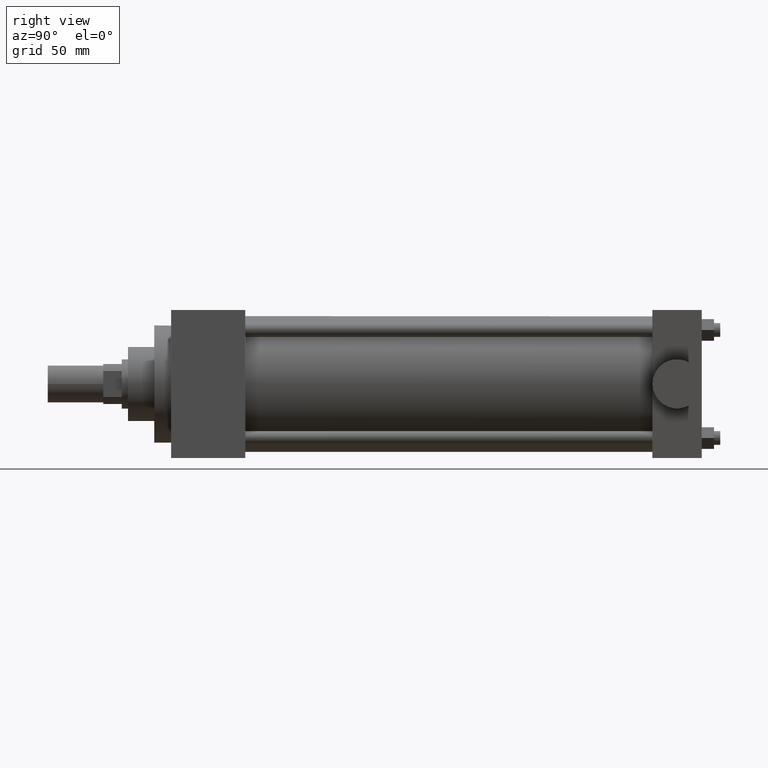
[diagram: clean part render]
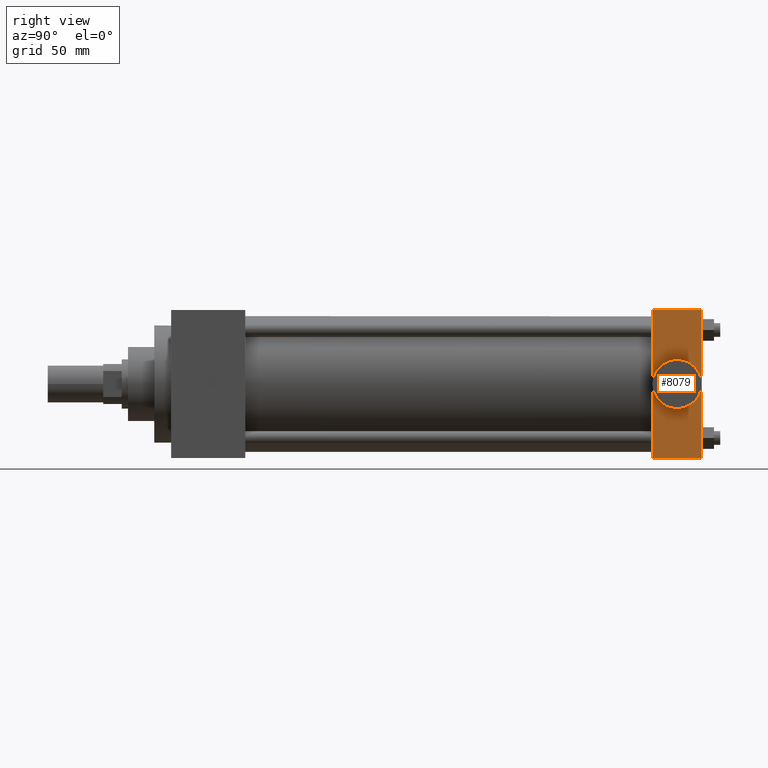
[diagram: same view with one face highlighted and labeled with its STEP entity id]
A machine part, right view. The second image highlights one B-rep face of the part: STEP entity #8079.
In plain terms, the highlighted planar face has unit normal (1, 0, 0).
Its self-contained STEP definition (entity closure, byte-faithful):
#2527=VERTEX_POINT('',#2529);
#2529=CARTESIAN_POINT('',(3.810000000E+001,3.079750000E+002,-3.810000000E+001));
#2542=VERTEX_POINT('',#2543);
#2543=CARTESIAN_POINT('',(3.810000000E+001,3.079750000E+002,3.810000000E+001));
#2544=EDGE_CURVE('',#2527,#2542,#2545,.T.);
#2545=LINE('',#2546,#2547);
#2546=CARTESIAN_POINT('',(3.810000000E+001,3.079750000E+002,-3.810000000E+001));
#2547=VECTOR('',#2548,1.0E+000);
#2548=DIRECTION('',(0.0E+000,0.0E+000,1.0E+000));
#2700=VERTEX_POINT('',#2702);
#2702=CARTESIAN_POINT('',(3.810000000E+001,2.825750000E+002,-3.810000000E+001));
#2703=EDGE_CURVE('',#2700,#2708,#2704,.T.);
#2704=LINE('',#2705,#2706);
#2705=CARTESIAN_POINT('',(3.810000000E+001,2.825750000E+002,-3.810000000E+001));
#2706=VECTOR('',#2707,1.0E+000);
#2707=DIRECTION('',(0.0E+000,0.0E+000,1.0E+000));
#2708=VERTEX_POINT('',#2709);
#2709=CARTESIAN_POINT('',(3.810000000E+001,2.825750000E+002,3.810000000E+001));
#2749=EDGE_CURVE('',#2527,#2700,#2750,.T.);
#2750=LINE('',#2751,#2752);
#2751=CARTESIAN_POINT('',(3.810000000E+001,3.079750000E+002,-3.810000000E+001));
#2752=VECTOR('',#2753,1.0E+000);
#2753=DIRECTION('',(0.0E+000,-1.0E+000,0.0E+000));
#2776=EDGE_CURVE('',#2542,#2708,#2777,.T.);
#2777=LINE('',#2778,#2779);
#2778=CARTESIAN_POINT('',(3.810000000E+001,3.079750000E+002,3.810000000E+001));
#2779=VECTOR('',#2780,1.0E+000);
#2780=DIRECTION('',(0.0E+000,-1.0E+000,0.0E+000));
#2822=FACE_OUTER_BOUND('',#2824,.T.);
#2823=FACE_BOUND('',#2825,.T.);
#2824=EDGE_LOOP('',(#2826,#2827,#2828,#2829));
#2825=EDGE_LOOP('',(#2830));
#2826=ORIENTED_EDGE('',*,*,#2703,.F.);
#2827=ORIENTED_EDGE('',*,*,#2749,.F.);
#2828=ORIENTED_EDGE('',*,*,#2544,.T.);
#2829=ORIENTED_EDGE('',*,*,#2776,.T.);
#2830=ORIENTED_EDGE('',*,*,#2831,.T.);
#2831=EDGE_CURVE('',#2837,#2837,#2832,.T.);
#2832=CIRCLE('',#2833,1.267460000E+001);
#2833=AXIS2_PLACEMENT_3D('',#2834,#2835,#2836);
#2834=CARTESIAN_POINT('',(3.810000000E+001,2.952750000E+002,0.000000000E+000));
#2835=DIRECTION('',(-1.0E+000,0.0E+000,0.0E+000));
#2836=DIRECTION('',(0.0E+000,1.0E+000,0.0E+000));
#2837=VERTEX_POINT('',#2838);
#2838=CARTESIAN_POINT('',(3.810000000E+001,3.079496000E+002,0.000000000E+000));
#2839=PLANE('',#2840);
#2840=AXIS2_PLACEMENT_3D('',#2841,#2842,#2843);
#2841=CARTESIAN_POINT('',(3.810000000E+001,3.079750000E+002,-3.810000000E+001));
#2842=DIRECTION('',(1.0E+000,0.0E+000,0.0E+000));
#2843=DIRECTION('',(0.0E+000,0.0E+000,-1.0E+000));
#8079=ADVANCED_FACE('',(#2822,#2823),#2839,.T.);